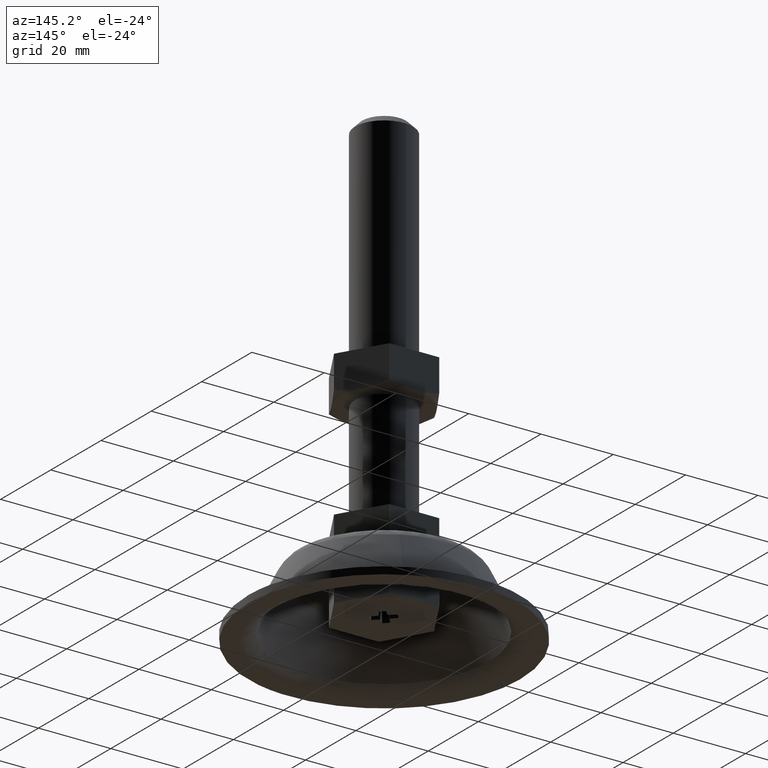
[diagram: clean part render]
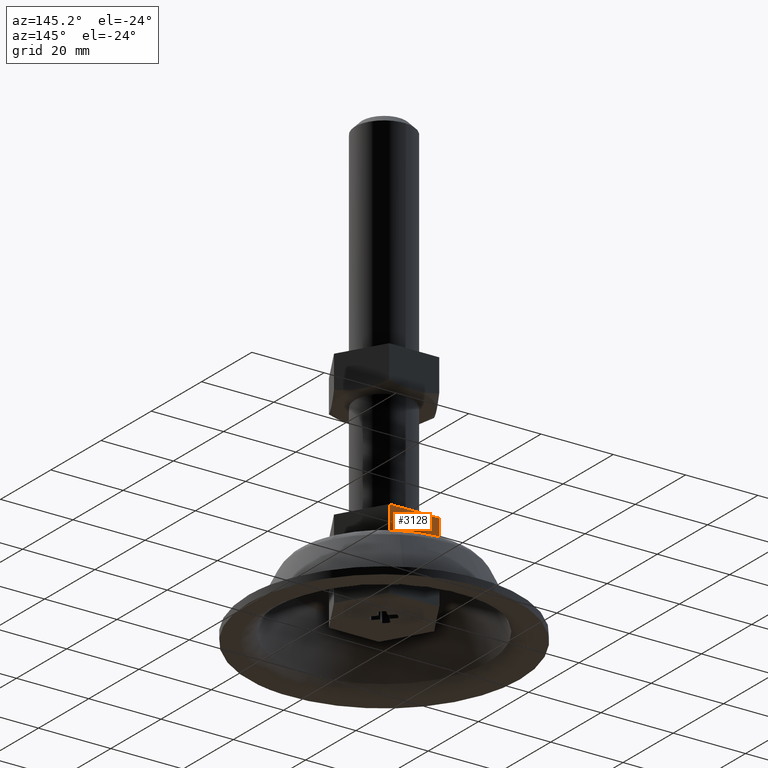
[diagram: same view with one face highlighted and labeled with its STEP entity id]
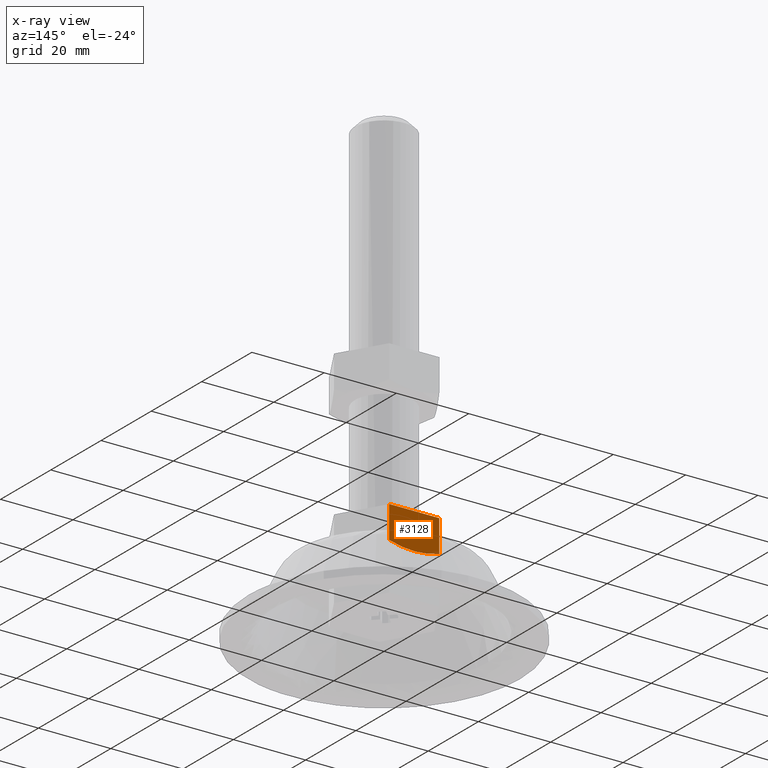
[diagram: x-ray of the same camera — body ghosted, the highlighted face saturated]
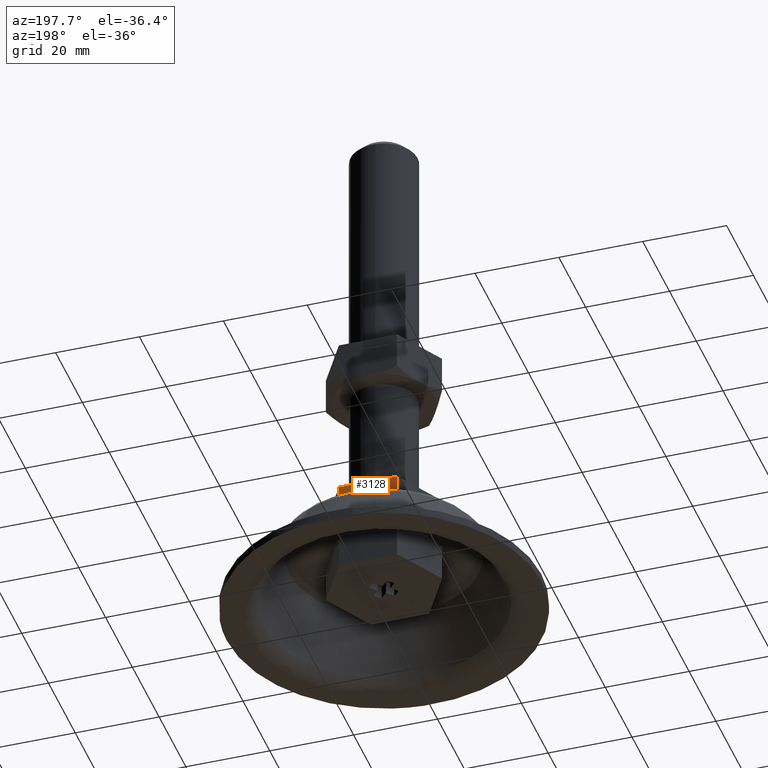
[diagram: same view with one face highlighted and labeled with its STEP entity id]
A machine part, auxiliary view. The second image highlights one B-rep face of the part: STEP entity #3128.
The next image is the same camera in x-ray: the body ghosted, the highlighted face saturated — about 1% of this face is hidden behind the body in this view.
A second angle (auxiliary view) of the same face is appended — the face is thin or edge-on in the first view.
In plain terms, the highlighted face is a freeform B-spline surface patch.
Its self-contained STEP definition (entity closure, byte-faithful):
#2664=CARTESIAN_POINT('',(-6.921797000000001,12.0,19.073646796981500));
#2665=VERTEX_POINT('',#2664);
#2666=CARTESIAN_POINT('',(-0.314231103675234,12.000001717831600,18.006078601953519));
#2667=VERTEX_POINT('',#2666);
#2668=CARTESIAN_POINT('',(-6.921797000000001,12.0,19.073646796981500));
#2669=CARTESIAN_POINT('',(-6.358660328347468,12.000000149329511,18.911195758698980));
#2670=CARTESIAN_POINT('',(-5.790343199158280,12.000000299426249,18.762065759851389));
#2671=CARTESIAN_POINT('',(-4.640615531207274,12.000000601558931,18.497474183144298));
#2672=CARTESIAN_POINT('',(-4.064224967467164,12.000000752272291,18.383250658606450));
#2673=CARTESIAN_POINT('',(-2.908357900876506,12.000001052750701,18.197069687064960));
#2674=CARTESIAN_POINT('',(-2.328807250556546,12.000001202533550,18.125136195765471));
#2675=CARTESIAN_POINT('',(-1.270943053458799,12.000001474162779,18.037124607869430));
#2676=CARTESIAN_POINT('',(-0.793218810601505,12.000001596175469,18.013336556088539));
#2677=CARTESIAN_POINT('',(-0.314231103675234,12.000001717831600,18.006078601953519));
#2678=B_SPLINE_CURVE_WITH_KNOTS('',3,(#2668,#2669,#2670,#2671,#2672,#2673,#2674,#2675,#2676,#2677),.UNSPECIFIED.,.F.,.U.,(4,2,2,2,4),(0.0,0.125000000000000,0.250000000000000,0.375000000000000,0.477457786679413),.UNSPECIFIED.);
#2679=EDGE_CURVE('',#2665,#2667,#2678,.T.);
#2805=CARTESIAN_POINT('',(6.921797000000001,12.0,19.073646796981500));
#2806=VERTEX_POINT('',#2805);
#2807=CARTESIAN_POINT('',(-0.314231103675234,12.000001717831600,18.006078601953519));
#2808=CARTESIAN_POINT('',(-0.208846793169203,12.000001693401080,18.004481834474191));
#2809=CARTESIAN_POINT('',(-0.103401322861133,12.000001668928920,18.003685230266090));
#2810=CARTESIAN_POINT('',(0.587159200255392,12.000001508479951,18.003755475927189));
#2811=CARTESIAN_POINT('',(1.174110738181233,12.000001371252830,18.028649348286319));
#2812=CARTESIAN_POINT('',(1.910142844888323,12.000001198124000,18.090416394428381));
#2813=CARTESIAN_POINT('',(2.057339811294976,12.000001163448401,18.104287623235969));
#2814=CARTESIAN_POINT('',(2.350644026083832,12.000001094252781,18.134877934891939));
#2815=CARTESIAN_POINT('',(2.789433208018294,12.000000990582830,18.185072043833131));
#2816=CARTESIAN_POINT('',(3.224847025936237,12.000000887269980,18.247726723258189));
#2817=CARTESIAN_POINT('',(4.669317147521979,12.000000543624800,18.482082078211299));
#2818=CARTESIAN_POINT('',(5.802870971066240,12.000000271038600,18.750864288149529));
#2819=CARTESIAN_POINT('',(6.921797000000001,12.0,19.073646796981500));
#2820=B_SPLINE_CURVE_WITH_KNOTS('',3,(#2807,#2808,#2809,#2810,#2811,#2812,#2813,#2814,#2815,#2816,#2817,#2818,#2819),.UNSPECIFIED.,.F.,.U.,(4,2,2,2,1,2,4),(0.477457786679413,0.500000000000000,0.625000000000000,0.656250000000000,0.687500000000000,0.750000000000000,1.0),.UNSPECIFIED.);
#2821=EDGE_CURVE('',#2667,#2806,#2820,.T.);
#3100=CARTESIAN_POINT('',(-7.613284314055633,12.0,28.499309516062350));
#3101=CARTESIAN_POINT('',(-7.613284314055633,12.0,17.504503320178021));
#3102=CARTESIAN_POINT('',(7.613283818970132,12.0,28.499309516062350));
#3103=CARTESIAN_POINT('',(7.613283818970132,12.0,17.504503320178021));
#3104=B_SPLINE_SURFACE_WITH_KNOTS('',1,1,((#3100,#3102),(#3101,#3103)),.UNSPECIFIED.,.F.,.F.,.U.,(2,2),(2,2),(0.0,10.994806195884330),(0.0,15.226568133025770),.UNSPECIFIED.);
#3105=ORIENTED_EDGE('',*,*,#2821,.F.);
#3106=ORIENTED_EDGE('',*,*,#2679,.F.);
#3107=CARTESIAN_POINT('',(-6.921797000000001,12.0,28.0));
#3108=VERTEX_POINT('',#3107);
#3109=CARTESIAN_POINT('',(-6.921797000000001,12.0,28.0));
#3110=CARTESIAN_POINT('',(-6.921797000000001,12.0,19.073646796981500));
#3111=QUASI_UNIFORM_CURVE('',1,(#3109,#3110),.UNSPECIFIED.,.F.,.U.);
#3112=EDGE_CURVE('',#3108,#2665,#3111,.T.);
#3113=ORIENTED_EDGE('',*,*,#3112,.F.);
#3114=CARTESIAN_POINT('',(6.921797000000001,12.0,28.0));
#3115=VERTEX_POINT('',#3114);
#3116=CARTESIAN_POINT('',(6.921797000000001,12.0,28.0));
#3117=CARTESIAN_POINT('',(-6.921797000000001,12.0,28.0));
#3118=QUASI_UNIFORM_CURVE('',1,(#3116,#3117),.UNSPECIFIED.,.F.,.U.);
#3119=EDGE_CURVE('',#3115,#3108,#3118,.T.);
#3120=ORIENTED_EDGE('',*,*,#3119,.F.);
#3121=CARTESIAN_POINT('',(6.921797000000001,12.0,28.0));
#3122=CARTESIAN_POINT('',(6.921797000000001,12.0,19.073646796981500));
#3123=QUASI_UNIFORM_CURVE('',1,(#3121,#3122),.UNSPECIFIED.,.F.,.U.);
#3124=EDGE_CURVE('',#3115,#2806,#3123,.T.);
#3125=ORIENTED_EDGE('',*,*,#3124,.T.);
#3126=EDGE_LOOP('',(#3105,#3106,#3113,#3120,#3125));
#3127=FACE_OUTER_BOUND('',#3126,.T.);
#3128=ADVANCED_FACE('',(#3127),#3104,.F.);